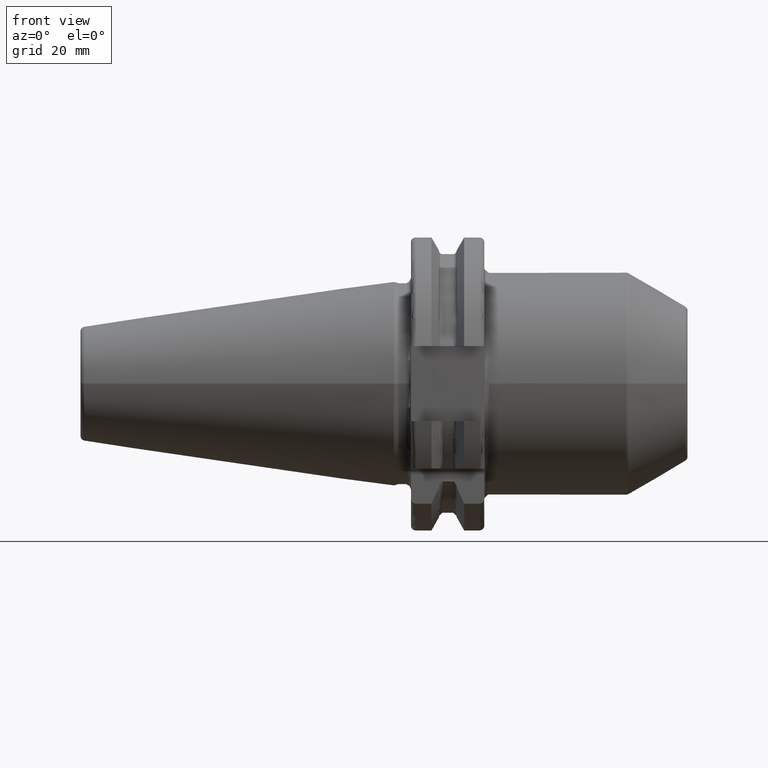
[diagram: clean part render]
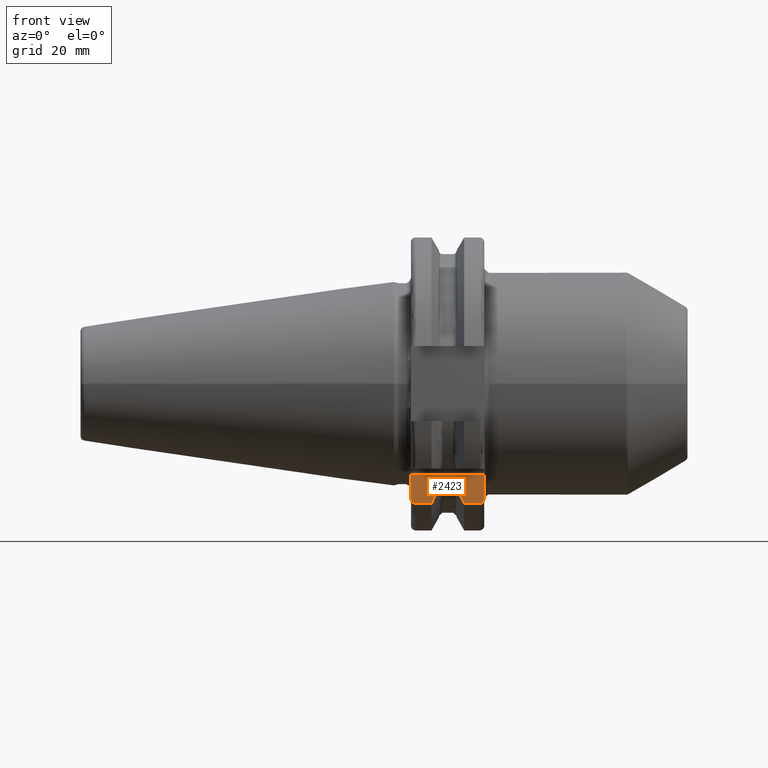
[diagram: same view with one face highlighted and labeled with its STEP entity id]
A machine part, front view. The second image highlights one B-rep face of the part: STEP entity #2423.
In plain terms, the highlighted planar face has unit normal (0, 1, 0).
Its self-contained STEP definition (entity closure, byte-faithful):
#251=DIRECTION('',(0.E0,0.E0,1.E0));
#252=VECTOR('',#251,4.990259339464E0);
#253=CARTESIAN_POINT('',(1.905E1,-1.835E1,-2.469025933946E1));
#254=LINE('',#253,#252);
#337=DIRECTION('',(0.E0,0.E0,1.E0));
#338=VECTOR('',#337,2.754068371193E-1);
#339=CARTESIAN_POINT('',(9.2625E0,-1.835E1,-2.240773613162E1));
#340=LINE('',#339,#338);
#443=DIRECTION('',(0.E0,0.E0,1.E0));
#444=VECTOR('',#443,2.754068371193E-1);
#445=CARTESIAN_POINT('',(1.30875E1,-1.835E1,-2.240773613162E1));
#446=LINE('',#445,#444);
#559=DIRECTION('',(0.E0,0.E0,1.E0));
#560=VECTOR('',#559,4.990259339464E0);
#561=CARTESIAN_POINT('',(3.2E0,-1.835E1,-2.469025933946E1));
#562=LINE('',#561,#560);
#620=DIRECTION('',(-1.E0,0.E0,0.E0));
#621=VECTOR('',#620,1.585E1);
#622=CARTESIAN_POINT('',(1.905E1,-1.835E1,-1.97E1));
#623=LINE('',#622,#621);
#635=CARTESIAN_POINT('',(1.905E1,-1.835E1,-2.469025933946E1));
#636=CARTESIAN_POINT('',(1.905E1,-1.835E1,-2.477827489148E1));
#637=CARTESIAN_POINT('',(1.903550352933E1,-1.835E1,-2.495194722121E1));
#638=CARTESIAN_POINT('',(1.896629632127E1,-1.835E1,-2.521302960336E1));
#639=CARTESIAN_POINT('',(1.884964259244E1,-1.835E1,-2.545175760021E1));
#640=CARTESIAN_POINT('',(1.869337393206E1,-1.835E1,-2.565125079223E1));
#641=CARTESIAN_POINT('',(1.850440420446E1,-1.835E1,-2.580344847600E1));
#642=CARTESIAN_POINT('',(1.828893233655E1,-1.835E1,-2.590127687802E1));
#643=CARTESIAN_POINT('',(1.813210111876E1,-1.835E1,-2.592554543785E1));
#644=CARTESIAN_POINT('',(1.805E1,-1.835E1,-2.592554543785E1));
#682=DIRECTION('',(1.E0,0.E0,0.E0));
#683=VECTOR('',#682,3.445946479578E0);
#684=CARTESIAN_POINT('',(4.2E0,-1.835E1,-2.592554543785E1));
#685=LINE('',#684,#683);
#700=DIRECTION('',(1.E0,0.E0,0.E0));
#701=VECTOR('',#700,3.345946479578E0);
#702=CARTESIAN_POINT('',(1.470405352042E1,-1.835E1,-2.592554543785E1));
#703=LINE('',#702,#701);
#751=CARTESIAN_POINT('',(4.2E0,-1.835E1,-2.592554543785E1));
#752=CARTESIAN_POINT('',(4.117978515713E0,-1.835E1,-2.592554543785E1));
#753=CARTESIAN_POINT('',(3.961246891048E0,-1.835E1,-2.590134188482E1));
#754=CARTESIAN_POINT('',(3.745539786217E0,-1.835E1,-2.580342617652E1));
#755=CARTESIAN_POINT('',(3.556578831610E0,-1.835E1,-2.565121806264E1));
#756=CARTESIAN_POINT('',(3.400124325915E0,-1.835E1,-2.545142383546E1));
#757=CARTESIAN_POINT('',(3.283526257188E0,-1.835E1,-2.521253976185E1));
#758=CARTESIAN_POINT('',(3.214446436835E0,-1.835E1,-2.495157117356E1));
#759=CARTESIAN_POINT('',(3.2E0,-1.835E1,-2.477812311755E1));
#760=CARTESIAN_POINT('',(3.2E0,-1.835E1,-2.469025933946E1));
#801=CARTESIAN_POINT('',(9.2625E0,-1.835E1,-2.240773613162E1));
#802=CARTESIAN_POINT('',(9.097869015375E0,-1.835E1,-2.277629848758E1));
#803=CARTESIAN_POINT('',(8.758691179732E0,-1.835E1,-2.352831190146E1));
#804=CARTESIAN_POINT('',(8.220420735022E0,-1.835E1,-2.469989032362E1));
#805=CARTESIAN_POINT('',(7.840855578955E0,-1.835E1,-2.551194640168E1));
#806=CARTESIAN_POINT('',(7.645946479578E0,-1.835E1,-2.592554543785E1));
#834=CARTESIAN_POINT('',(1.30875E1,-1.835E1,-2.240773613162E1));
#835=CARTESIAN_POINT('',(1.325213098463E1,-1.835E1,-2.277629848758E1));
#836=CARTESIAN_POINT('',(1.359130882027E1,-1.835E1,-2.352831190146E1));
#837=CARTESIAN_POINT('',(1.412957926498E1,-1.835E1,-2.469989032362E1));
#838=CARTESIAN_POINT('',(1.450914442104E1,-1.835E1,-2.551194640168E1));
#839=CARTESIAN_POINT('',(1.470405352042E1,-1.835E1,-2.592554543785E1));
#876=CARTESIAN_POINT('',(1.30875E1,-1.835E1,-2.213232929450E1));
#877=CARTESIAN_POINT('',(1.30875E1,-1.835E1,-2.206221408282E1));
#878=CARTESIAN_POINT('',(1.307623234956E1,-1.835E1,-2.192389012956E1));
#879=CARTESIAN_POINT('',(1.302304002386E1,-1.835E1,-2.171577032079E1));
#880=CARTESIAN_POINT('',(1.293464596960E1,-1.835E1,-2.152606845134E1));
#881=CARTESIAN_POINT('',(1.281674247215E1,-1.835E1,-2.136698869001E1));
#882=CARTESIAN_POINT('',(1.267543530336E1,-1.835E1,-2.124593918272E1));
#883=CARTESIAN_POINT('',(1.251391277471E1,-1.835E1,-2.116784088975E1));
#884=CARTESIAN_POINT('',(1.239797666454E1,-1.835E1,-2.114893614346E1));
#885=CARTESIAN_POINT('',(1.23375E1,-1.835E1,-2.114893614346E1));
#923=DIRECTION('',(1.E0,0.E0,0.E0));
#924=VECTOR('',#923,2.325E0);
#925=CARTESIAN_POINT('',(1.00125E1,-1.835E1,-2.114893614346E1));
#926=LINE('',#925,#924);
#956=CARTESIAN_POINT('',(1.00125E1,-1.835E1,-2.114893614346E1));
#957=CARTESIAN_POINT('',(9.951993698949E0,-1.835E1,-2.114893614346E1));
#958=CARTESIAN_POINT('',(9.836000286499E0,-1.835E1,-2.116785770514E1));
#959=CARTESIAN_POINT('',(9.674360365633E0,-1.835E1,-2.124605529531E1));
#960=CARTESIAN_POINT('',(9.533017193128E0,-1.835E1,-2.136726141392E1));
#961=CARTESIAN_POINT('',(9.415344880527E0,-1.835E1,-2.152613059545E1));
#962=CARTESIAN_POINT('',(9.327039810665E0,-1.835E1,-2.171558232438E1));
#963=CARTESIAN_POINT('',(9.273817984253E0,-1.835E1,-2.192356855291E1));
#964=CARTESIAN_POINT('',(9.2625E0,-1.835E1,-2.206207271485E1));
#965=CARTESIAN_POINT('',(9.2625E0,-1.835E1,-2.213232929450E1));
#1469=CARTESIAN_POINT('',(9.2625E0,-1.835E1,-2.240773613162E1));
#1470=CARTESIAN_POINT('',(9.2625E0,-1.835E1,-2.213232929450E1));
#1471=VERTEX_POINT('',#1469);
#1472=VERTEX_POINT('',#1470);
#1497=CARTESIAN_POINT('',(1.30875E1,-1.835E1,-2.240773613162E1));
#1498=CARTESIAN_POINT('',(1.30875E1,-1.835E1,-2.213232929450E1));
#1499=VERTEX_POINT('',#1497);
#1500=VERTEX_POINT('',#1498);
#1562=CARTESIAN_POINT('',(1.00125E1,-1.835E1,-2.114893614346E1));
#1563=VERTEX_POINT('',#1562);
#1564=CARTESIAN_POINT('',(1.23375E1,-1.835E1,-2.114893614346E1));
#1565=VERTEX_POINT('',#1564);
#1570=CARTESIAN_POINT('',(1.905E1,-1.835E1,-2.469025933946E1));
#1571=VERTEX_POINT('',#1570);
#1572=CARTESIAN_POINT('',(1.805E1,-1.835E1,-2.592554543785E1));
#1573=VERTEX_POINT('',#1572);
#1574=CARTESIAN_POINT('',(4.2E0,-1.835E1,-2.592554543785E1));
#1575=VERTEX_POINT('',#1574);
#1576=CARTESIAN_POINT('',(3.2E0,-1.835E1,-2.469025933946E1));
#1577=VERTEX_POINT('',#1576);
#1582=CARTESIAN_POINT('',(1.905E1,-1.835E1,-1.97E1));
#1583=VERTEX_POINT('',#1582);
#1588=CARTESIAN_POINT('',(3.2E0,-1.835E1,-1.97E1));
#1589=VERTEX_POINT('',#1588);
#1631=VERTEX_POINT('',#839);
#1632=VERTEX_POINT('',#806);
#2393=CARTESIAN_POINT('',(1.905E1,-1.835E1,-2.835E1));
#2394=DIRECTION('',(0.E0,1.E0,0.E0));
#2395=DIRECTION('',(0.E0,0.E0,1.E0));
#2396=AXIS2_PLACEMENT_3D('',#2393,#2394,#2395);
#2397=PLANE('',#2396);
#2398=ORIENTED_EDGE('',*,*,#1995,.F.);
#2400=ORIENTED_EDGE('',*,*,#2399,.T.);
#2402=ORIENTED_EDGE('',*,*,#2401,.F.);
#2404=ORIENTED_EDGE('',*,*,#2403,.F.);
#2405=ORIENTED_EDGE('',*,*,#2203,.T.);
#2407=ORIENTED_EDGE('',*,*,#2406,.T.);
#2409=ORIENTED_EDGE('',*,*,#2408,.F.);
#2411=ORIENTED_EDGE('',*,*,#2410,.T.);
#2412=ORIENTED_EDGE('',*,*,#2117,.F.);
#2414=ORIENTED_EDGE('',*,*,#2413,.T.);
#2416=ORIENTED_EDGE('',*,*,#2415,.F.);
#2418=ORIENTED_EDGE('',*,*,#2417,.T.);
#2419=ORIENTED_EDGE('',*,*,#2327,.T.);
#2420=ORIENTED_EDGE('',*,*,#2386,.F.);
#2421=EDGE_LOOP('',(#2398,#2400,#2402,#2404,#2405,#2407,#2409,#2411,#2412,#2414,
#2416,#2418,#2419,#2420));
#2422=FACE_OUTER_BOUND('',#2421,.F.);
#2423=ADVANCED_FACE('',(#2422),#2397,.F.);
#645=B_SPLINE_CURVE_WITH_KNOTS('',3,(#635,#636,#637,#638,#639,#640,#641,#642,
#643,#644),.UNSPECIFIED.,.F.,.F.,(4,1,1,1,1,1,1,4),(0.E0,1.428571428571E-1,
2.857142857143E-1,4.285714285714E-1,5.714285714286E-1,7.142857142857E-1,
8.571428571429E-1,1.E0),.UNSPECIFIED.);
#761=B_SPLINE_CURVE_WITH_KNOTS('',3,(#751,#752,#753,#754,#755,#756,#757,#758,
#759,#760),.UNSPECIFIED.,.F.,.F.,(4,1,1,1,1,1,1,4),(0.E0,1.428571428571E-1,
2.857142857143E-1,4.285714285714E-1,5.714285714286E-1,7.142857142857E-1,
8.571428571429E-1,1.E0),.UNSPECIFIED.);
#807=B_SPLINE_CURVE_WITH_KNOTS('',3,(#801,#802,#803,#804,#805,#806),
.UNSPECIFIED.,.F.,.F.,(4,1,1,4),(0.E0,3.333333333333E-1,6.666666666667E-1,1.E0),
.UNSPECIFIED.);
#840=B_SPLINE_CURVE_WITH_KNOTS('',3,(#834,#835,#836,#837,#838,#839),
.UNSPECIFIED.,.F.,.F.,(4,1,1,4),(0.E0,3.333333333333E-1,6.666666666667E-1,1.E0),
.UNSPECIFIED.);
#886=B_SPLINE_CURVE_WITH_KNOTS('',3,(#876,#877,#878,#879,#880,#881,#882,#883,
#884,#885),.UNSPECIFIED.,.F.,.F.,(4,1,1,1,1,1,1,4),(0.E0,1.428571428571E-1,
2.857142857143E-1,4.285714285714E-1,5.714285714286E-1,7.142857142857E-1,
8.571428571429E-1,1.E0),.UNSPECIFIED.);
#966=B_SPLINE_CURVE_WITH_KNOTS('',3,(#956,#957,#958,#959,#960,#961,#962,#963,
#964,#965),.UNSPECIFIED.,.F.,.F.,(4,1,1,1,1,1,1,4),(0.E0,1.428571428571E-1,
2.857142857143E-1,4.285714285714E-1,5.714285714286E-1,7.142857142857E-1,
8.571428571429E-1,1.E0),.UNSPECIFIED.);
#1995=EDGE_CURVE('',#1571,#1583,#254,.T.);
#2117=EDGE_CURVE('',#1471,#1472,#340,.T.);
#2203=EDGE_CURVE('',#1499,#1500,#446,.T.);
#2327=EDGE_CURVE('',#1577,#1589,#562,.T.);
#2386=EDGE_CURVE('',#1583,#1589,#623,.T.);
#2399=EDGE_CURVE('',#1571,#1573,#645,.T.);
#2401=EDGE_CURVE('',#1631,#1573,#703,.T.);
#2403=EDGE_CURVE('',#1499,#1631,#840,.T.);
#2406=EDGE_CURVE('',#1500,#1565,#886,.T.);
#2408=EDGE_CURVE('',#1563,#1565,#926,.T.);
#2410=EDGE_CURVE('',#1563,#1472,#966,.T.);
#2413=EDGE_CURVE('',#1471,#1632,#807,.T.);
#2415=EDGE_CURVE('',#1575,#1632,#685,.T.);
#2417=EDGE_CURVE('',#1575,#1577,#761,.T.);